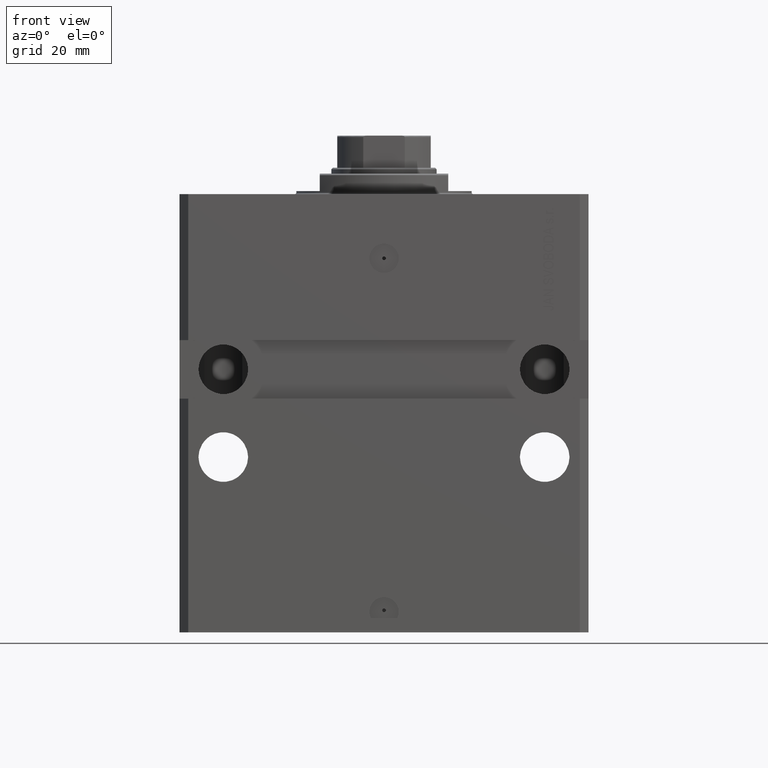
[diagram: clean part render]
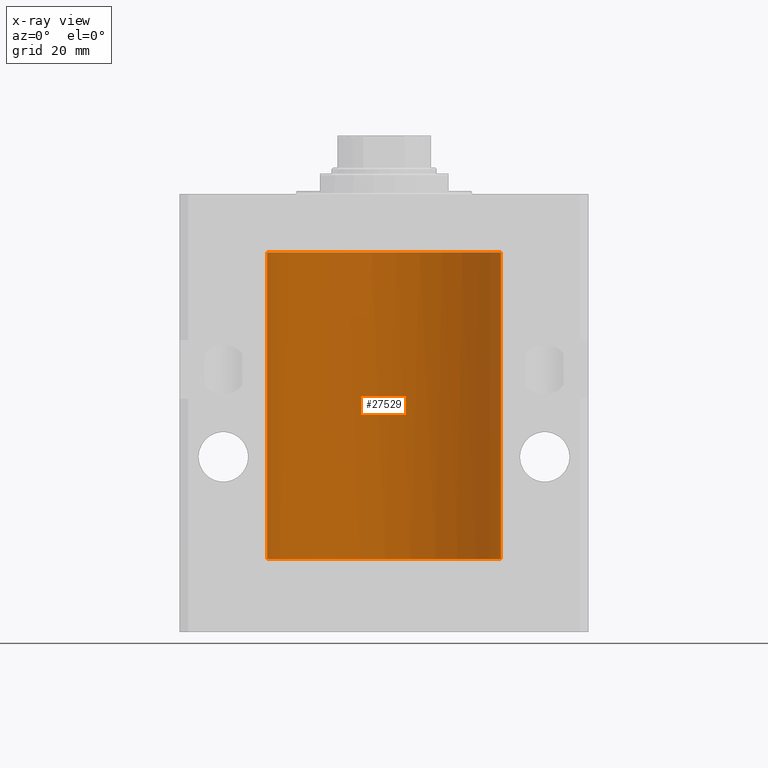
[diagram: x-ray — body ghosted, one internal face saturated and labeled with its STEP entity id]
A machine part, front view, then the same camera in x-ray: the body is ghosted and one INTERNAL B-rep face — a face not visible from any outside direction — is saturated and labeled: STEP entity #27529.
In plain terms, the highlighted cylindrical surface (partial cylindrical patch) has radius 40 mm, axis along (0, 0, 1).
Its self-contained STEP definition (entity closure, byte-faithful):
#114 = CARTESIAN_POINT ( 'NONE',  ( -40.00000000000000000, 1.067655236296513633E-14, -34.37500000000000000 ) ) ;
#1066 = EDGE_LOOP ( 'NONE', ( #35903, #20693, #22237, #27395, #10524, #12955, #10720 ) ) ;
#1883 = EDGE_CURVE ( 'NONE', #34816, #31688, #21472, .T. ) ;
#2417 = CARTESIAN_POINT ( 'NONE',  ( -39.99511688944026844, 0.6250000000083276719, -125.0000000000009663 ) ) ;
#2738 = DIRECTION ( 'NONE',  ( 0.000000000000000000, 0.000000000000000000, 1.000000000000000000 ) ) ;
#2748 = FACE_OUTER_BOUND ( 'NONE', #1066, .T. ) ;
#2783 = CARTESIAN_POINT ( 'NONE',  ( -40.00000000000000000, 1.067655236296513633E-14, -34.37500000000000000 ) ) ;
#3251 = CYLINDRICAL_SURFACE ( 'NONE', #48015, 40.00000000000000000 ) ;
#3420 = CARTESIAN_POINT ( 'NONE',  ( -40.00000000000000000, 4.898587196589413026E-15, -124.3750000000000000 ) ) ;
#5303 = VECTOR ( 'NONE', #43935, 1000.000000000000000 ) ;
#5867 = VERTEX_POINT ( 'NONE', #2783 ) ;
#6048 = CARTESIAN_POINT ( 'NONE',  ( -40.00000000000000000, 4.898587196589413026E-15, -125.0000000000000000 ) ) ;
#6165 = CARTESIAN_POINT ( 'NONE',  ( -39.99883059471594038, 0.3150922677711107123, -124.4540520539132302 ) ) ;
#6410 = CARTESIAN_POINT ( 'NONE',  ( -39.99999999999999289, 0.08261046678389233344, -124.3750000000000000 ) ) ;
#9579 = CARTESIAN_POINT ( 'NONE',  ( 40.00000000000000000, 0.000000000000000000, -125.0000000000000000 ) ) ;
#10524 = ORIENTED_EDGE ( 'NONE', *, *, #46225, .T. ) ;
#10720 = ORIENTED_EDGE ( 'NONE', *, *, #45661, .T. ) ;
#11824 = CARTESIAN_POINT ( 'NONE',  ( -39.99511598657579725, 0.6250577762831023287, -35.16284024614854076 ) ) ;
#12955 = ORIENTED_EDGE ( 'NONE', *, *, #38672, .F. ) ;
#13457 = B_SPLINE_CURVE_WITH_KNOTS ( 'NONE', 3,
 ( #3420, #6410, #40293, #6165, #40798, #21349, #36564, #2417 ),
 .UNSPECIFIED., .F., .F.,
 ( 4, 2, 2, 4 ),
 ( 1.482047217475598388E-18, 0.0002443135086519942936, 0.0004886270173039871777, 0.0009772540346079435641 ),
 .UNSPECIFIED. ) ;
#13512 = DIRECTION ( 'NONE',  ( -0.000000000000000000, -0.000000000000000000, 1.000000000000000000 ) ) ;
#13998 = CARTESIAN_POINT ( 'NONE',  ( -40.00000000000000000, 4.898587196589413026E-15, -125.0000000000000000 ) ) ;
#14892 = B_SPLINE_CURVE_WITH_KNOTS ( 'NONE', 3,
 ( #114, #18566, #23287, #26532, #41243, #15313, #48995, #11824, #34508, #22297, #27021, #41487 ),
 .UNSPECIFIED., .F., .F.,
 ( 4, 2, 2, 2, 2, 4 ),
 ( 1.036137471307501474E-18, 0.0002442581846113557891, 0.0004885163692227106023, 0.0009770327384454201205, 0.001465549107668129639, 0.001954065476890838940 ),
 .UNSPECIFIED. ) ;
#15313 = CARTESIAN_POINT ( 'NONE',  ( -39.99628330279644928, 0.5573335244821722156, -34.67349122557948249 ) ) ;
#15760 = CARTESIAN_POINT ( 'NONE',  ( -40.00000000000000000, 4.898587196589413026E-15, -124.3750000000000000 ) ) ;
#16721 = DIRECTION ( 'NONE',  ( 1.000000000000000000, 0.000000000000000000, 0.000000000000000000 ) ) ;
#16962 = CARTESIAN_POINT ( 'NONE',  ( 0.000000000000000000, 0.000000000000000000, -125.0000000000000000 ) ) ;
#17692 = CARTESIAN_POINT ( 'NONE',  ( 0.000000000000000000, 0.000000000000000000, -20.00000000000000355 ) ) ;
#18566 = CARTESIAN_POINT ( 'NONE',  ( -40.00000000000000000, 0.08259175989844856625, -34.37500000000000711 ) ) ;
#19400 = CARTESIAN_POINT ( 'NONE',  ( -40.00000000000000000, 4.898587196589413026E-15, -20.00000000000000355 ) ) ;
#19692 = CARTESIAN_POINT ( 'NONE',  ( 40.00000000000000000, 0.000000000000000000, -125.0000000000000000 ) ) ;
#20693 = ORIENTED_EDGE ( 'NONE', *, *, #49163, .T. ) ;
#20735 = CARTESIAN_POINT ( 'NONE',  ( -39.99511688944026844, 0.6250000000083276719, -125.0000000000009663 ) ) ;
#21189 = AXIS2_PLACEMENT_3D ( 'NONE', #16962, #47636, #16721 ) ;
#21349 = CARTESIAN_POINT ( 'NONE',  ( -39.99628216152224525, 0.5574163469043993402, -124.6736150110507850 ) ) ;
#21472 = LINE ( 'NONE', #13998, #36368 ) ;
#21483 = VERTEX_POINT ( 'NONE', #26454 ) ;
#21889 = VERTEX_POINT ( 'NONE', #19400 ) ;
#22237 = ORIENTED_EDGE ( 'NONE', *, *, #39004, .F. ) ;
#22297 = CARTESIAN_POINT ( 'NONE',  ( -39.99884667815961592, 0.3253863549934230548, -35.55855380835959778 ) ) ;
#23287 = CARTESIAN_POINT ( 'NONE',  ( -39.99973691478699322, 0.1636360998065314876, -34.39126145361714748 ) ) ;
#23861 = CIRCLE ( 'NONE', #39757, 40.00000000000000000 ) ;
#24394 = CIRCLE ( 'NONE', #21189, 40.00000000000000000 ) ;
#25024 = DIRECTION ( 'NONE',  ( -0.000000000000000000, -0.000000000000000000, 1.000000000000000000 ) ) ;
#26454 = CARTESIAN_POINT ( 'NONE',  ( 40.00000000000000000, 0.000000000000000000, -20.00000000000000355 ) ) ;
#26532 = CARTESIAN_POINT ( 'NONE',  ( -39.99883108112248919, 0.3150272514608761787, -34.45401719637956717 ) ) ;
#27021 = CARTESIAN_POINT ( 'NONE',  ( -39.99999999999999289, 0.1631654129523948116, -35.62499999999986500 ) ) ;
#27395 = ORIENTED_EDGE ( 'NONE', *, *, #30782, .T. ) ;
#27529 = ADVANCED_FACE ( 'NONE', ( #2748 ), #3251, .F. ) ;
#29408 = DIRECTION ( 'NONE',  ( -0.000000000000000000, -0.000000000000000000, 1.000000000000000000 ) ) ;
#30770 = CARTESIAN_POINT ( 'NONE',  ( -40.00000000000004974, 3.462873814982701370E-13, -35.62500000000321165 ) ) ;
#30782 = EDGE_CURVE ( 'NONE', #31979, #21483, #43713, .T. ) ;
#31688 = VERTEX_POINT ( 'NONE', #30770 ) ;
#31979 = VERTEX_POINT ( 'NONE', #19692 ) ;
#33140 = CARTESIAN_POINT ( 'NONE',  ( 0.000000000000000000, 0.000000000000000000, -125.0000000000000000 ) ) ;
#34046 = VERTEX_POINT ( 'NONE', #20735 ) ;
#34508 = CARTESIAN_POINT ( 'NONE',  ( -39.99626798708276709, 0.5587118831704992461, -35.32511485424845432 ) ) ;
#34816 = VERTEX_POINT ( 'NONE', #15760 ) ;
#35903 = ORIENTED_EDGE ( 'NONE', *, *, #1883, .F. ) ;
#36156 = VECTOR ( 'NONE', #25024, 1000.000000000000000 ) ;
#36368 = VECTOR ( 'NONE', #13512, 1000.000000000000000 ) ;
#36564 = CARTESIAN_POINT ( 'NONE',  ( -39.99511688944039633, 0.6250000000003782530, -124.8368981687180934 ) ) ;
#38672 = EDGE_CURVE ( 'NONE', #5867, #21889, #39945, .T. ) ;
#39004 = EDGE_CURVE ( 'NONE', #31979, #34046, #24394, .T. ) ;
#39757 = AXIS2_PLACEMENT_3D ( 'NONE', #17692, #2738, #48122 ) ;
#39945 = LINE ( 'NONE', #6048, #5303 ) ;
#40293 = CARTESIAN_POINT ( 'NONE',  ( -39.99973678563278412, 0.1636739505491723035, -124.3912692426391828 ) ) ;
#40798 = CARTESIAN_POINT ( 'NONE',  ( -39.99819409212158661, 0.3844402436586037419, -124.5005157807721616 ) ) ;
#41243 = CARTESIAN_POINT ( 'NONE',  ( -39.99819482034362039, 0.3843641341271077372, -34.50046008996472580 ) ) ;
#41487 = CARTESIAN_POINT ( 'NONE',  ( -40.00000000000004974, 3.462873814982701370E-13, -35.62500000000321165 ) ) ;
#43713 = LINE ( 'NONE', #9579, #36156 ) ;
#43935 = DIRECTION ( 'NONE',  ( -0.000000000000000000, -0.000000000000000000, 1.000000000000000000 ) ) ;
#45661 = EDGE_CURVE ( 'NONE', #5867, #31688, #14892, .T. ) ;
#46225 = EDGE_CURVE ( 'NONE', #21483, #21889, #23861, .T. ) ;
#47636 = DIRECTION ( 'NONE',  ( 0.000000000000000000, 0.000000000000000000, 1.000000000000000000 ) ) ;
#48015 = AXIS2_PLACEMENT_3D ( 'NONE', #33140, #29408, #48131 ) ;
#48122 = DIRECTION ( 'NONE',  ( 1.000000000000000000, 0.000000000000000000, 0.000000000000000000 ) ) ;
#48131 = DIRECTION ( 'NONE',  ( 1.000000000000000000, 0.000000000000000000, 0.000000000000000000 ) ) ;
#48995 = CARTESIAN_POINT ( 'NONE',  ( -39.99511779353280616, 0.6249421451454513221, -34.83671655111833587 ) ) ;
#49163 = EDGE_CURVE ( 'NONE', #34816, #34046, #13457, .T. ) ;